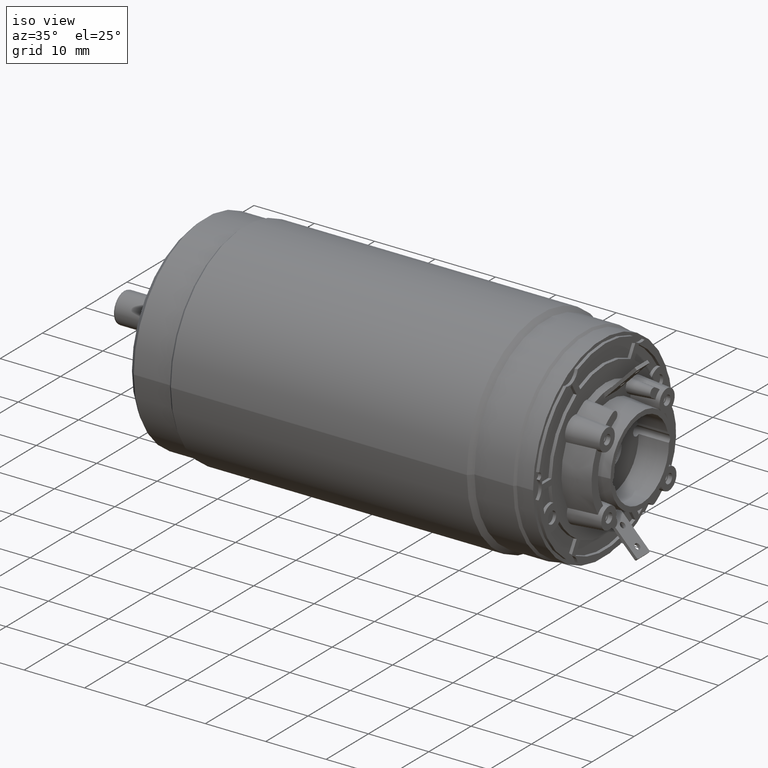
[diagram: clean part render]
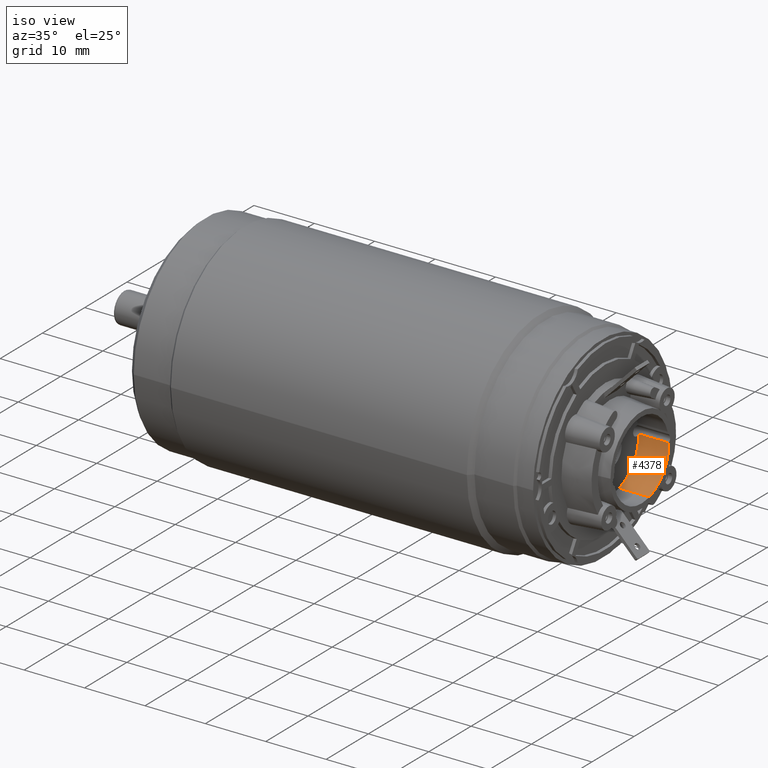
[diagram: same view with one face highlighted and labeled with its STEP entity id]
A machine part, iso view. The second image highlights one B-rep face of the part: STEP entity #4378.
In plain terms, the highlighted cylindrical surface (partial cylindrical patch) has radius 6.5 mm, axis along (-1, 0, 0).
Its self-contained STEP definition (entity closure, byte-faithful):
#571=DIRECTION('',(-1.E0,0.E0,0.E0));
#572=VECTOR('',#571,5.E0);
#573=CARTESIAN_POINT('',(1.32E1,1.873238243898E0,-6.224225131018E0));
#574=LINE('',#573,#572);
#575=CARTESIAN_POINT('',(8.2E0,0.E0,0.E0));
#576=DIRECTION('',(1.E0,0.E0,0.E0));
#577=DIRECTION('',(0.E0,2.881904990612E-1,-9.575730970797E-1));
#578=AXIS2_PLACEMENT_3D('',#575,#576,#577);
#580=DIRECTION('',(-1.E0,0.E0,0.E0));
#581=VECTOR('',#580,5.E0);
#582=CARTESIAN_POINT('',(1.32E1,6.499099280671E0,1.082060071309E-1));
#583=LINE('',#582,#581);
#584=CARTESIAN_POINT('',(1.32E1,0.E0,0.E0));
#585=DIRECTION('',(-1.E0,0.E0,0.E0));
#586=DIRECTION('',(0.E0,9.998614277956E-1,1.664707802014E-2));
#587=AXIS2_PLACEMENT_3D('',#584,#585,#586);
#3223=CARTESIAN_POINT('',(1.32E1,6.499099280671E0,1.082060071309E-1));
#3225=VERTEX_POINT('',#3223);
#3238=CARTESIAN_POINT('',(8.2E0,6.499099280671E0,1.082060071309E-1));
#3239=VERTEX_POINT('',#3238);
#3254=CARTESIAN_POINT('',(1.32E1,1.873238243898E0,-6.224225131018E0));
#3256=VERTEX_POINT('',#3254);
#3258=CARTESIAN_POINT('',(8.2E0,1.873238243898E0,-6.224225131018E0));
#3259=VERTEX_POINT('',#3258);
#4364=CARTESIAN_POINT('',(6.007741892316E1,0.E0,0.E0));
#4365=DIRECTION('',(-1.E0,0.E0,0.E0));
#4366=DIRECTION('',(0.E0,1.E0,0.E0));
#4367=AXIS2_PLACEMENT_3D('',#4364,#4365,#4366);
#4368=CYLINDRICAL_SURFACE('',#4367,6.5E0);
#4370=ORIENTED_EDGE('',*,*,#4369,.T.);
#4371=ORIENTED_EDGE('',*,*,#4297,.T.);
#4373=ORIENTED_EDGE('',*,*,#4372,.F.);
#4375=ORIENTED_EDGE('',*,*,#4374,.T.);
#4376=EDGE_LOOP('',(#4370,#4371,#4373,#4375));
#4377=FACE_OUTER_BOUND('',#4376,.F.);
#4378=ADVANCED_FACE('',(#4377),#4368,.F.);
#579=CIRCLE('',#578,6.5E0);
#588=CIRCLE('',#587,6.5E0);
#4297=EDGE_CURVE('',#3259,#3239,#579,.T.);
#4369=EDGE_CURVE('',#3256,#3259,#574,.T.);
#4372=EDGE_CURVE('',#3225,#3239,#583,.T.);
#4374=EDGE_CURVE('',#3225,#3256,#588,.T.);